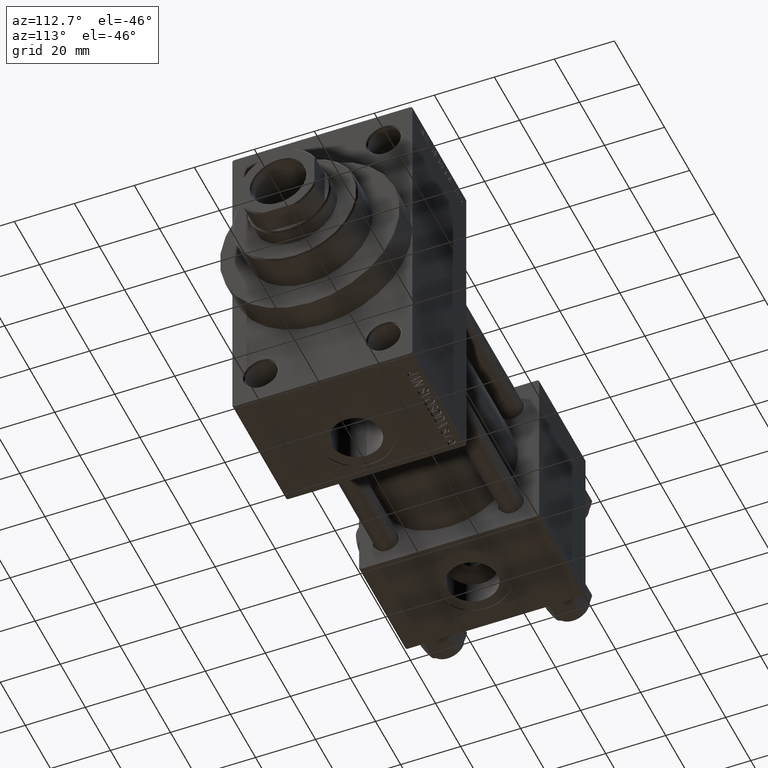
[diagram: clean part render]
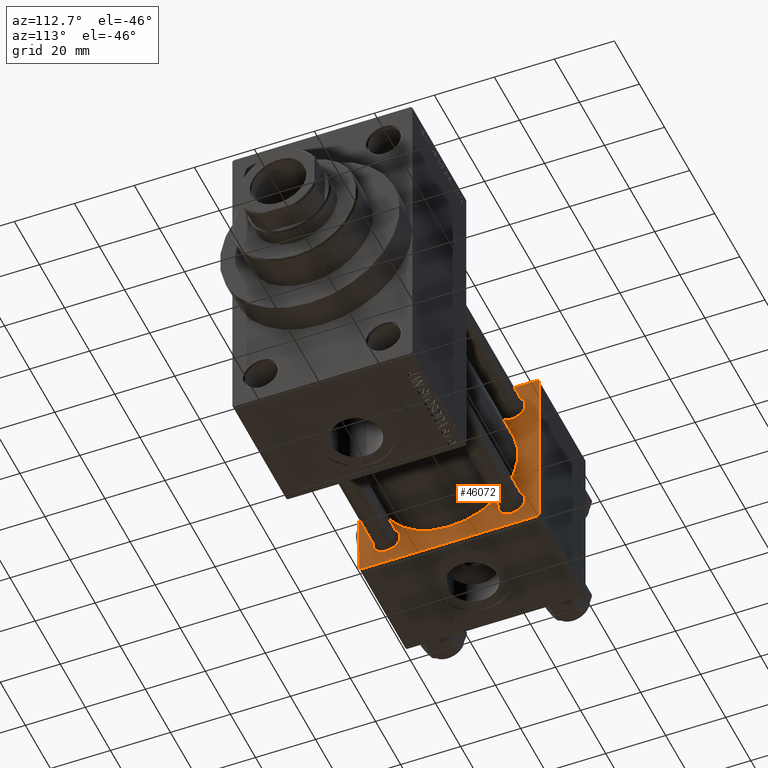
[diagram: same view with one face highlighted and labeled with its STEP entity id]
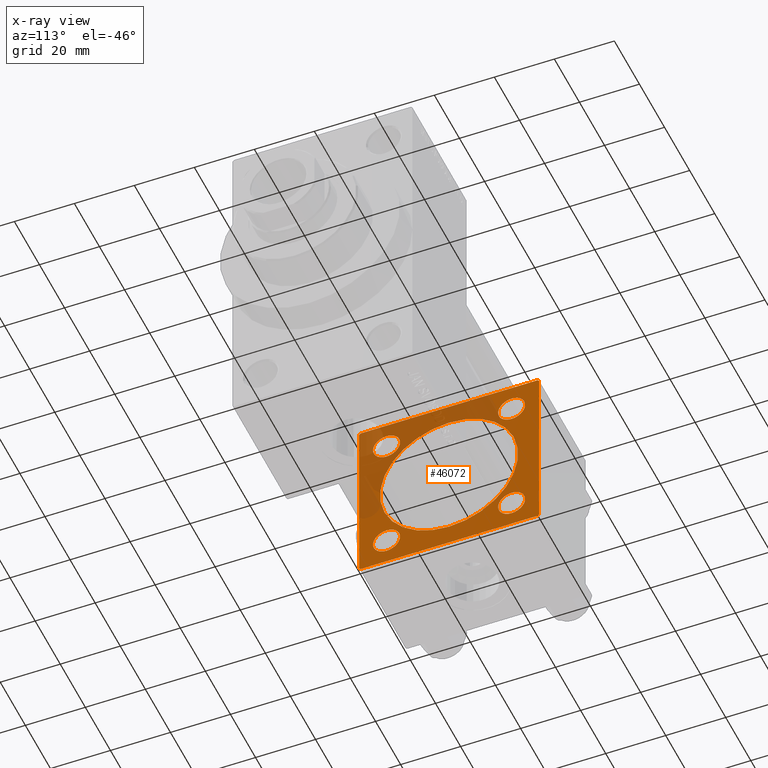
[diagram: x-ray of the same camera — body ghosted, the highlighted face saturated]
A machine part, auxiliary view. The second image highlights one B-rep face of the part: STEP entity #46072.
The next image is the same camera in x-ray: the body ghosted, the highlighted face saturated — about 36% of this face is hidden behind the body in this view.
In plain terms, the highlighted planar face has unit normal (-1, 0, 0).
Its self-contained STEP definition (entity closure, byte-faithful):
#245 = LINE ( 'NONE', #3734, #23221 ) ;
#291 = CARTESIAN_POINT ( 'NONE',  ( 37.00000000000000000, -29.49999999999998579, 29.99999999999999289 ) ) ;
#645 = ORIENTED_EDGE ( 'NONE', *, *, #18582, .T. ) ;
#870 = FACE_BOUND ( 'NONE', #13685, .T. ) ;
#1311 = VECTOR ( 'NONE', #5581, 1000.000000000000114 ) ;
#1348 = DIRECTION ( 'NONE',  ( -1.000000000000000000, 0.000000000000000000, -0.000000000000000000 ) ) ;
#1400 = VECTOR ( 'NONE', #20812, 1000.000000000000114 ) ;
#2086 = LINE ( 'NONE', #21279, #1311 ) ;
#2441 = CIRCLE ( 'NONE', #17570, 4.499999999999976019 ) ;
#2515 = EDGE_CURVE ( 'NONE', #40010, #11285, #26529, .T. ) ;
#2623 = DIRECTION ( 'NONE',  ( 0.000000000000000000, -1.000000000000000000, -1.156482317317871725E-16 ) ) ;
#2742 = DIRECTION ( 'NONE',  ( 0.000000000000000000, 0.000000000000000000, 1.000000000000000000 ) ) ;
#3105 = CARTESIAN_POINT ( 'NONE',  ( 37.00000000000000000, -30.00000000000000000, 29.49999999999999289 ) ) ;
#3554 = EDGE_CURVE ( 'NONE', #38213, #21758, #22068, .T. ) ;
#3632 = VERTEX_POINT ( 'NONE', #44367 ) ;
#3734 = CARTESIAN_POINT ( 'NONE',  ( 37.00000000000000000, 29.99999999999999289, -30.00000000000000000 ) ) ;
#4298 = VERTEX_POINT ( 'NONE', #42405 ) ;
#4425 = CARTESIAN_POINT ( 'NONE',  ( 37.00000000000000000, 29.99999999999999289, 29.50000000000000000 ) ) ;
#4936 = CIRCLE ( 'NONE', #28815, 4.499999999999976019 ) ;
#5090 = FACE_OUTER_BOUND ( 'NONE', #34912, .T. ) ;
#5193 = EDGE_CURVE ( 'NONE', #25002, #4298, #6616, .T. ) ;
#5581 = DIRECTION ( 'NONE',  ( -0.000000000000000000, -0.7071067811865474617, -0.7071067811865474617 ) ) ;
#5682 = VERTEX_POINT ( 'NONE', #22444 ) ;
#5765 = EDGE_LOOP ( 'NONE', ( #645, #23116 ) ) ;
#5854 = VERTEX_POINT ( 'NONE', #18088 ) ;
#6357 = CIRCLE ( 'NONE', #43751, 23.00000000000000000 ) ;
#6611 = DIRECTION ( 'NONE',  ( 0.000000000000000000, 0.000000000000000000, -1.000000000000000000 ) ) ;
#6616 = LINE ( 'NONE', #25304, #36468 ) ;
#6848 = CARTESIAN_POINT ( 'NONE',  ( 37.00000000000000000, 29.99999999999999289, 30.00000000000000000 ) ) ;
#7152 = VERTEX_POINT ( 'NONE', #20245 ) ;
#7274 = EDGE_CURVE ( 'NONE', #35104, #5682, #25290, .T. ) ;
#7677 = CARTESIAN_POINT ( 'NONE',  ( 37.00000000000000000, 20.84999999999999787, 20.85000000000000142 ) ) ;
#7966 = VECTOR ( 'NONE', #2623, 1000.000000000000000 ) ;
#8035 = ORIENTED_EDGE ( 'NONE', *, *, #3554, .F. ) ;
#8255 = EDGE_CURVE ( 'NONE', #36932, #5854, #31666, .T. ) ;
#8547 = DIRECTION ( 'NONE',  ( -1.000000000000000000, 0.000000000000000000, -0.000000000000000000 ) ) ;
#8946 = EDGE_CURVE ( 'NONE', #40010, #11272, #27543, .T. ) ;
#9108 = CARTESIAN_POINT ( 'NONE',  ( 37.00000000000000000, 29.99999999999999289, -29.50000000000000000 ) ) ;
#9317 = DIRECTION ( 'NONE',  ( -0.000000000000000000, 0.000000000000000000, 1.000000000000000000 ) ) ;
#10349 = VERTEX_POINT ( 'NONE', #291 ) ;
#10397 = CARTESIAN_POINT ( 'NONE',  ( 37.00000000000000000, -2.602085213965210642E-15, 0.000000000000000000 ) ) ;
#10558 = AXIS2_PLACEMENT_3D ( 'NONE', #32102, #21147, #17167 ) ;
#11272 = VERTEX_POINT ( 'NONE', #46521 ) ;
#11285 = VERTEX_POINT ( 'NONE', #9108 ) ;
#12335 = FACE_BOUND ( 'NONE', #39957, .T. ) ;
#13310 = AXIS2_PLACEMENT_3D ( 'NONE', #36152, #43882, #2742 ) ;
#13509 = CARTESIAN_POINT ( 'NONE',  ( 37.00000000000000000, -20.84999999999999076, -25.34999999999998010 ) ) ;
#13570 = VERTEX_POINT ( 'NONE', #14394 ) ;
#13685 = EDGE_LOOP ( 'NONE', ( #32953, #40540 ) ) ;
#14263 = DIRECTION ( 'NONE',  ( -1.000000000000000000, 0.000000000000000000, -0.000000000000000000 ) ) ;
#14394 = CARTESIAN_POINT ( 'NONE',  ( 37.00000000000000000, 29.49999999999997868, -30.00000000000000000 ) ) ;
#15230 = DIRECTION ( 'NONE',  ( 0.000000000000000000, 0.000000000000000000, 1.000000000000000000 ) ) ;
#15251 = AXIS2_PLACEMENT_3D ( 'NONE', #35496, #1348, #9317 ) ;
#16424 = LINE ( 'NONE', #35360, #34484 ) ;
#16572 = DIRECTION ( 'NONE',  ( -1.000000000000000000, 0.000000000000000000, -0.000000000000000000 ) ) ;
#16762 = ORIENTED_EDGE ( 'NONE', *, *, #42778, .T. ) ;
#17167 = DIRECTION ( 'NONE',  ( 0.000000000000000000, 0.000000000000000000, 1.000000000000000000 ) ) ;
#17570 = AXIS2_PLACEMENT_3D ( 'NONE', #7677, #38101, #19173 ) ;
#17610 = EDGE_CURVE ( 'NONE', #19693, #19792, #4936, .T. ) ;
#18088 = CARTESIAN_POINT ( 'NONE',  ( 37.00000000000000000, -20.84999999999999076, 16.35000000000002629 ) ) ;
#18402 = CARTESIAN_POINT ( 'NONE',  ( 37.00000000000000000, -20.84999999999999076, 20.85000000000000497 ) ) ;
#18582 = EDGE_CURVE ( 'NONE', #5854, #36932, #20105, .T. ) ;
#18786 = EDGE_CURVE ( 'NONE', #4298, #7152, #40024, .T. ) ;
#18809 = AXIS2_PLACEMENT_3D ( 'NONE', #21487, #14263, #21741 ) ;
#19071 = ORIENTED_EDGE ( 'NONE', *, *, #20456, .F. ) ;
#19163 = EDGE_CURVE ( 'NONE', #45545, #3632, #32029, .T. ) ;
#19173 = DIRECTION ( 'NONE',  ( 0.000000000000000000, 0.000000000000000000, 1.000000000000000000 ) ) ;
#19310 = CARTESIAN_POINT ( 'NONE',  ( 37.00000000000000000, 20.84999999999999787, -20.85000000000000142 ) ) ;
#19693 = VERTEX_POINT ( 'NONE', #41985 ) ;
#19792 = VERTEX_POINT ( 'NONE', #39719 ) ;
#20105 = CIRCLE ( 'NONE', #24893, 4.499999999999976019 ) ;
#20245 = CARTESIAN_POINT ( 'NONE',  ( 37.00000000000000000, -29.50000000000000000, -30.00000000000000711 ) ) ;
#20308 = PLANE ( 'NONE',  #15251 ) ;
#20413 = DIRECTION ( 'NONE',  ( -0.000000000000000000, 0.7071067811865574537, 0.7071067811865376918 ) ) ;
#20416 = ORIENTED_EDGE ( 'NONE', *, *, #18786, .T. ) ;
#20456 = EDGE_CURVE ( 'NONE', #13570, #7152, #245, .T. ) ;
#20812 = DIRECTION ( 'NONE',  ( 0.000000000000000000, -0.7071067811865474617, 0.7071067811865474617 ) ) ;
#21049 = CARTESIAN_POINT ( 'NONE',  ( 37.00000000000000000, 20.84999999999999787, -20.85000000000000142 ) ) ;
#21147 = DIRECTION ( 'NONE',  ( -1.000000000000000000, 0.000000000000000000, -0.000000000000000000 ) ) ;
#21279 = CARTESIAN_POINT ( 'NONE',  ( 37.00000000000000000, -30.00000000000000000, 29.49999999999999289 ) ) ;
#21487 = CARTESIAN_POINT ( 'NONE',  ( 37.00000000000000000, -20.84999999999999076, -20.85000000000000497 ) ) ;
#21741 = DIRECTION ( 'NONE',  ( 0.000000000000000000, 0.000000000000000000, 1.000000000000000000 ) ) ;
#21758 = VERTEX_POINT ( 'NONE', #37588 ) ;
#21816 = LINE ( 'NONE', #6848, #7966 ) ;
#22068 = CIRCLE ( 'NONE', #13310, 23.00000000000000000 ) ;
#22444 = CARTESIAN_POINT ( 'NONE',  ( 37.00000000000000000, 20.84999999999999787, 16.35000000000002274 ) ) ;
#23116 = ORIENTED_EDGE ( 'NONE', *, *, #8255, .T. ) ;
#23221 = VECTOR ( 'NONE', #34379, 1000.000000000000000 ) ;
#24182 = ORIENTED_EDGE ( 'NONE', *, *, #7274, .T. ) ;
#24667 = EDGE_CURVE ( 'NONE', #21758, #38213, #6357, .T. ) ;
#24697 = CARTESIAN_POINT ( 'NONE',  ( 37.00000000000000000, -20.84999999999999076, 25.34999999999998010 ) ) ;
#24893 = AXIS2_PLACEMENT_3D ( 'NONE', #18402, #33081, #29610 ) ;
#25002 = VERTEX_POINT ( 'NONE', #3105 ) ;
#25160 = DIRECTION ( 'NONE',  ( 0.000000000000000000, 0.000000000000000000, 1.000000000000000000 ) ) ;
#25290 = CIRCLE ( 'NONE', #46781, 4.499999999999976019 ) ;
#25304 = CARTESIAN_POINT ( 'NONE',  ( 37.00000000000000000, -30.00000000000000000, 29.99999999999999289 ) ) ;
#25505 = ORIENTED_EDGE ( 'NONE', *, *, #24667, .F. ) ;
#26529 = LINE ( 'NONE', #34244, #26829 ) ;
#26771 = DIRECTION ( 'NONE',  ( 0.000000000000000000, 0.000000000000000000, 1.000000000000000000 ) ) ;
#26829 = VECTOR ( 'NONE', #6611, 1000.000000000000000 ) ;
#27292 = CARTESIAN_POINT ( 'NONE',  ( 37.00000000000000000, -2.602085213965210642E-15, 23.00000000000000000 ) ) ;
#27497 = EDGE_CURVE ( 'NONE', #5682, #35104, #2441, .T. ) ;
#27543 = LINE ( 'NONE', #28535, #1400 ) ;
#27782 = FACE_BOUND ( 'NONE', #37463, .T. ) ;
#28535 = CARTESIAN_POINT ( 'NONE',  ( 37.00000000000000000, 29.49999999999999289, 30.00000000000000000 ) ) ;
#28563 = DIRECTION ( 'NONE',  ( 0.000000000000000000, 0.7071067811865474617, -0.7071067811865474617 ) ) ;
#28748 = ORIENTED_EDGE ( 'NONE', *, *, #48119, .T. ) ;
#28815 = AXIS2_PLACEMENT_3D ( 'NONE', #19310, #8547, #26771 ) ;
#29610 = DIRECTION ( 'NONE',  ( 0.000000000000000000, 0.000000000000000000, 1.000000000000000000 ) ) ;
#29939 = CIRCLE ( 'NONE', #18809, 4.499999999999976019 ) ;
#30197 = EDGE_CURVE ( 'NONE', #19792, #19693, #31517, .T. ) ;
#30992 = ORIENTED_EDGE ( 'NONE', *, *, #8946, .T. ) ;
#31517 = CIRCLE ( 'NONE', #42677, 4.499999999999976019 ) ;
#31666 = CIRCLE ( 'NONE', #42008, 4.499999999999976019 ) ;
#32029 = CIRCLE ( 'NONE', #10558, 4.499999999999976019 ) ;
#32058 = ORIENTED_EDGE ( 'NONE', *, *, #2515, .F. ) ;
#32102 = CARTESIAN_POINT ( 'NONE',  ( 37.00000000000000000, -20.84999999999999076, -20.85000000000000497 ) ) ;
#32501 = ORIENTED_EDGE ( 'NONE', *, *, #41033, .T. ) ;
#32521 = DIRECTION ( 'NONE',  ( 0.000000000000000000, 0.000000000000000000, -1.000000000000000000 ) ) ;
#32823 = VECTOR ( 'NONE', #28563, 1000.000000000000114 ) ;
#32953 = ORIENTED_EDGE ( 'NONE', *, *, #17610, .T. ) ;
#33081 = DIRECTION ( 'NONE',  ( -1.000000000000000000, 0.000000000000000000, -0.000000000000000000 ) ) ;
#34244 = CARTESIAN_POINT ( 'NONE',  ( 37.00000000000000000, 29.99999999999999289, 30.00000000000000000 ) ) ;
#34379 = DIRECTION ( 'NONE',  ( 0.000000000000000000, -1.000000000000000000, -1.156482317317871725E-16 ) ) ;
#34484 = VECTOR ( 'NONE', #20413, 999.9999999999998863 ) ;
#34912 = EDGE_LOOP ( 'NONE', ( #19071, #16762, #32058, #30992, #32501, #28748, #42194, #20416 ) ) ;
#35104 = VERTEX_POINT ( 'NONE', #42834 ) ;
#35360 = CARTESIAN_POINT ( 'NONE',  ( 37.00000000000000000, 29.99999999999999289, -29.50000000000000000 ) ) ;
#35496 = CARTESIAN_POINT ( 'NONE',  ( 37.00000000000000000, 0.000000000000000000, 0.000000000000000000 ) ) ;
#36137 = DIRECTION ( 'NONE',  ( -1.000000000000000000, 0.000000000000000000, -0.000000000000000000 ) ) ;
#36152 = CARTESIAN_POINT ( 'NONE',  ( 37.00000000000000000, -2.602085213965210642E-15, 0.000000000000000000 ) ) ;
#36241 = DIRECTION ( 'NONE',  ( 0.000000000000000000, 0.000000000000000000, 1.000000000000000000 ) ) ;
#36468 = VECTOR ( 'NONE', #32521, 1000.000000000000000 ) ;
#36630 = CARTESIAN_POINT ( 'NONE',  ( 37.00000000000000000, -20.84999999999999076, 20.85000000000000497 ) ) ;
#36932 = VERTEX_POINT ( 'NONE', #24697 ) ;
#37315 = DIRECTION ( 'NONE',  ( 1.000000000000000000, -0.000000000000000000, 0.000000000000000000 ) ) ;
#37463 = EDGE_LOOP ( 'NONE', ( #48653, #24182 ) ) ;
#37588 = CARTESIAN_POINT ( 'NONE',  ( 37.00000000000000000, 2.146024240737012665E-16, -23.00000000000000000 ) ) ;
#37898 = DIRECTION ( 'NONE',  ( -1.000000000000000000, 0.000000000000000000, -0.000000000000000000 ) ) ;
#38070 = EDGE_LOOP ( 'NONE', ( #40230, #39498 ) ) ;
#38101 = DIRECTION ( 'NONE',  ( -1.000000000000000000, 0.000000000000000000, -0.000000000000000000 ) ) ;
#38213 = VERTEX_POINT ( 'NONE', #27292 ) ;
#38389 = CARTESIAN_POINT ( 'NONE',  ( 37.00000000000000000, 20.84999999999999787, 20.85000000000000142 ) ) ;
#39242 = FACE_BOUND ( 'NONE', #38070, .T. ) ;
#39498 = ORIENTED_EDGE ( 'NONE', *, *, #46528, .T. ) ;
#39719 = CARTESIAN_POINT ( 'NONE',  ( 37.00000000000000000, 20.84999999999999787, -16.35000000000002274 ) ) ;
#39957 = EDGE_LOOP ( 'NONE', ( #8035, #25505 ) ) ;
#40010 = VERTEX_POINT ( 'NONE', #4425 ) ;
#40024 = LINE ( 'NONE', #48244, #32823 ) ;
#40230 = ORIENTED_EDGE ( 'NONE', *, *, #19163, .T. ) ;
#40540 = ORIENTED_EDGE ( 'NONE', *, *, #30197, .T. ) ;
#41033 = EDGE_CURVE ( 'NONE', #11272, #10349, #21816, .T. ) ;
#41985 = CARTESIAN_POINT ( 'NONE',  ( 37.00000000000000000, 20.84999999999999787, -25.34999999999997655 ) ) ;
#42008 = AXIS2_PLACEMENT_3D ( 'NONE', #36630, #36137, #25160 ) ;
#42194 = ORIENTED_EDGE ( 'NONE', *, *, #5193, .T. ) ;
#42405 = CARTESIAN_POINT ( 'NONE',  ( 37.00000000000000000, -30.00000000000000000, -29.50000000000001776 ) ) ;
#42677 = AXIS2_PLACEMENT_3D ( 'NONE', #21049, #16572, #36241 ) ;
#42778 = EDGE_CURVE ( 'NONE', #13570, #11285, #16424, .T. ) ;
#42834 = CARTESIAN_POINT ( 'NONE',  ( 37.00000000000000000, 20.84999999999999787, 25.34999999999997655 ) ) ;
#43751 = AXIS2_PLACEMENT_3D ( 'NONE', #10397, #37315, #48048 ) ;
#43882 = DIRECTION ( 'NONE',  ( 1.000000000000000000, -0.000000000000000000, 0.000000000000000000 ) ) ;
#44367 = CARTESIAN_POINT ( 'NONE',  ( 37.00000000000000000, -20.84999999999999076, -16.35000000000002629 ) ) ;
#45545 = VERTEX_POINT ( 'NONE', #13509 ) ;
#46072 = ADVANCED_FACE ( 'NONE', ( #39242, #870, #46490, #27782, #12335, #5090 ), #20308, .F. ) ;
#46490 = FACE_BOUND ( 'NONE', #5765, .T. ) ;
#46521 = CARTESIAN_POINT ( 'NONE',  ( 37.00000000000000000, 29.49999999999999289, 30.00000000000000000 ) ) ;
#46528 = EDGE_CURVE ( 'NONE', #3632, #45545, #29939, .T. ) ;
#46781 = AXIS2_PLACEMENT_3D ( 'NONE', #38389, #37898, #15230 ) ;
#48048 = DIRECTION ( 'NONE',  ( 0.000000000000000000, 0.000000000000000000, 1.000000000000000000 ) ) ;
#48119 = EDGE_CURVE ( 'NONE', #10349, #25002, #2086, .T. ) ;
#48244 = CARTESIAN_POINT ( 'NONE',  ( 37.00000000000000000, -29.50000000000001066, -30.00000000000000711 ) ) ;
#48653 = ORIENTED_EDGE ( 'NONE', *, *, #27497, .T. ) ;